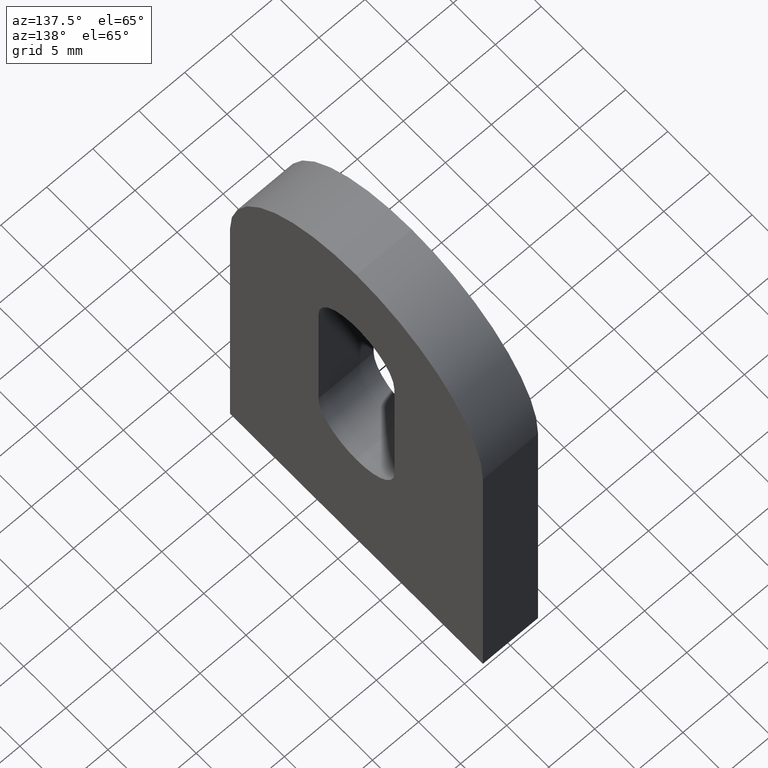
[diagram: clean part render]
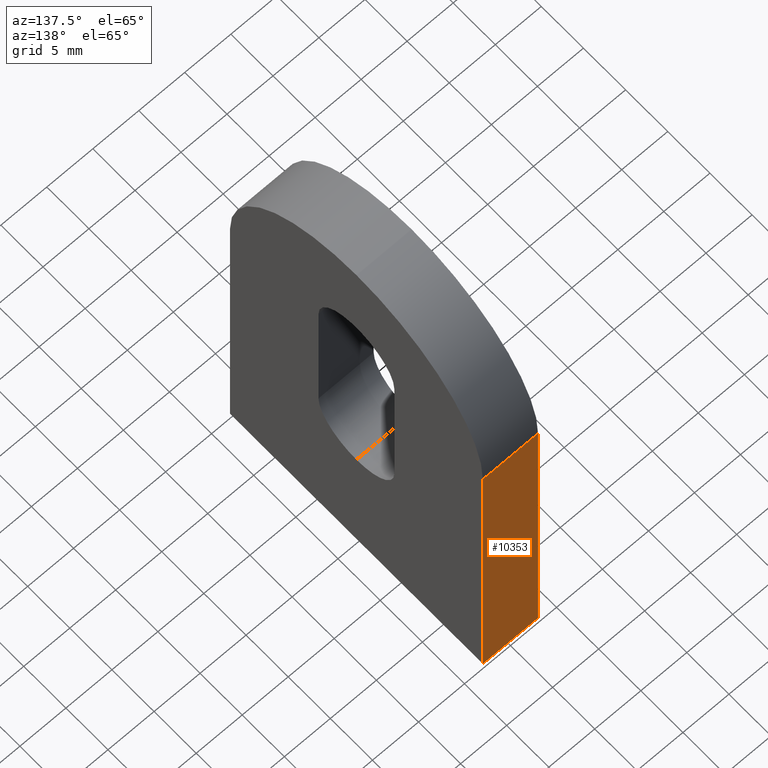
[diagram: same view with one face highlighted and labeled with its STEP entity id]
A machine part, auxiliary view. The second image highlights one B-rep face of the part: STEP entity #10353.
In plain terms, the highlighted planar face has unit normal (-0, 1, 0).
Its self-contained STEP definition (entity closure, byte-faithful):
#840 = VERTEX_POINT ( 'NONE', #1124 ) ;
#861 = DIRECTION ( 'NONE',  ( 0.0000000000000000000, 4.956352788505163400E-017, -1.000000000000000000 ) ) ;
#969 = ORIENTED_EDGE ( 'NONE', *, *, #9722, .F. ) ;
#1056 = CARTESIAN_POINT ( 'NONE',  ( -3.000000000000000000, 14.99999999999999800, 34.99999999999999300 ) ) ;
#1124 = CARTESIAN_POINT ( 'NONE',  ( 3.000000000000000000, 14.99999999999999800, 34.99999999999999300 ) ) ;
#1401 = DIRECTION ( 'NONE',  ( -1.000000000000000000, -0.0000000000000000000, -0.0000000000000000000 ) ) ;
#1617 = EDGE_CURVE ( 'NONE', #6825, #3223, #3093, .T. ) ;
#1830 = EDGE_CURVE ( 'NONE', #840, #6825, #9911, .T. ) ;
#2551 = LINE ( 'NONE', #10446, #8822 ) ;
#2555 = DIRECTION ( 'NONE',  ( -1.000000000000000000, -0.0000000000000000000, -0.0000000000000000000 ) ) ;
#3093 = LINE ( 'NONE', #9875, #5283 ) ;
#3223 = VERTEX_POINT ( 'NONE', #4854 ) ;
#3762 = CARTESIAN_POINT ( 'NONE',  ( 3.000000000000000000, 15.00000000000000000, -3.061616997868383000E-015 ) ) ;
#4144 = ORIENTED_EDGE ( 'NONE', *, *, #1617, .T. ) ;
#4429 = DIRECTION ( 'NONE',  ( 0.0000000000000000000, -4.956352788505162800E-017, 1.000000000000000000 ) ) ;
#4854 = CARTESIAN_POINT ( 'NONE',  ( -3.000000000000000000, 15.00000000000000000, -3.061616997868383000E-015 ) ) ;
#5076 = LINE ( 'NONE', #8907, #6614 ) ;
#5082 = VERTEX_POINT ( 'NONE', #1056 ) ;
#5179 = PLANE ( 'NONE',  #5605 ) ;
#5283 = VECTOR ( 'NONE', #2555, 1000.000000000000000 ) ;
#5413 = DIRECTION ( 'NONE',  ( 0.0000000000000000000, 4.956352788505163400E-017, -1.000000000000000000 ) ) ;
#5605 = AXIS2_PLACEMENT_3D ( 'NONE', #6012, #7648, #4429 ) ;
#6012 = CARTESIAN_POINT ( 'NONE',  ( 3.000000000000000000, 14.99999999999999800, 34.99999999999999300 ) ) ;
#6058 = VECTOR ( 'NONE', #5413, 1000.000000000000000 ) ;
#6169 = CARTESIAN_POINT ( 'NONE',  ( 3.000000000000000000, 14.99999999999999800, 34.99999999999999300 ) ) ;
#6614 = VECTOR ( 'NONE', #861, 1000.000000000000000 ) ;
#6825 = VERTEX_POINT ( 'NONE', #3762 ) ;
#7648 = DIRECTION ( 'NONE',  ( -0.0000000000000000000, 1.000000000000000000, 4.956352788505162800E-017 ) ) ;
#8306 = ORIENTED_EDGE ( 'NONE', *, *, #10585, .F. ) ;
#8822 = VECTOR ( 'NONE', #1401, 1000.000000000000000 ) ;
#8907 = CARTESIAN_POINT ( 'NONE',  ( -3.000000000000000000, 14.99999999999999800, 34.99999999999999300 ) ) ;
#9722 = EDGE_CURVE ( 'NONE', #840, #5082, #2551, .T. ) ;
#9875 = CARTESIAN_POINT ( 'NONE',  ( 3.000000000000000000, 15.00000000000000000, -3.061616997868383000E-015 ) ) ;
#9911 = LINE ( 'NONE', #6169, #6058 ) ;
#10273 = EDGE_LOOP ( 'NONE', ( #8306, #969, #10457, #4144 ) ) ;
#10353 = ADVANCED_FACE ( 'NONE', ( #10601 ), #5179, .T. ) ;
#10446 = CARTESIAN_POINT ( 'NONE',  ( 3.000000000000000000, 14.99999999999999800, 34.99999999999999300 ) ) ;
#10457 = ORIENTED_EDGE ( 'NONE', *, *, #1830, .T. ) ;
#10585 = EDGE_CURVE ( 'NONE', #5082, #3223, #5076, .T. ) ;
#10601 = FACE_OUTER_BOUND ( 'NONE', #10273, .T. ) ;